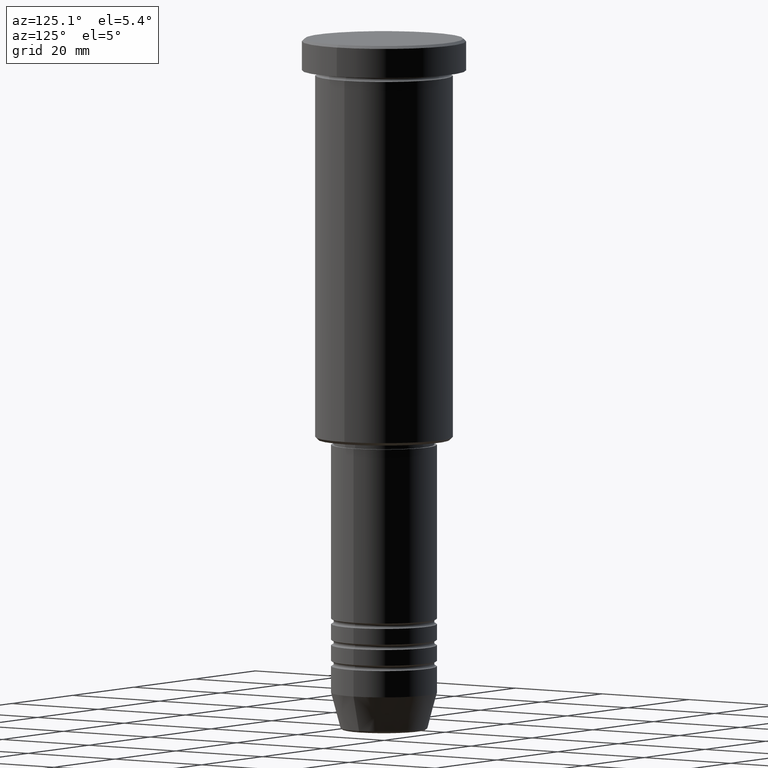
[diagram: clean part render]
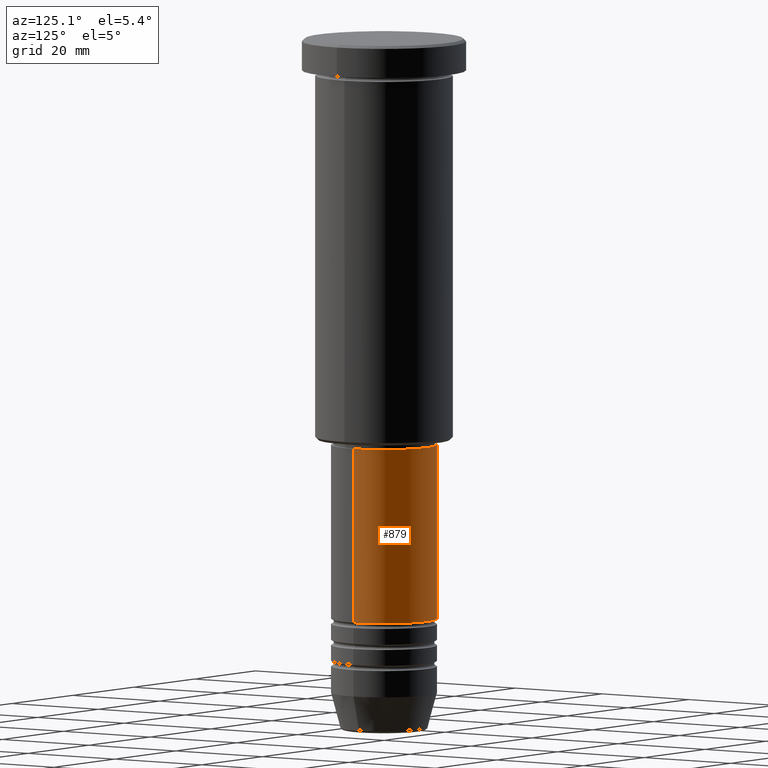
[diagram: same view with one face highlighted and labeled with its STEP entity id]
A machine part, auxiliary view. The second image highlights one B-rep face of the part: STEP entity #879.
In plain terms, the highlighted cylindrical surface (partial cylindrical patch) has radius 10 mm, axis along (-0, -0, 1).
Its self-contained STEP definition (entity closure, byte-faithful):
#50 = CARTESIAN_POINT ( 'NONE',  ( -10.00000000000000178, 1.224646799147353454E-15, -109.9999999999998863 ) ) ;
#95 = AXIS2_PLACEMENT_3D ( 'NONE', #957, #678, #1040 ) ;
#180 = CARTESIAN_POINT ( 'NONE',  ( 0.000000000000000000, 0.000000000000000000, -76.99999999999998579 ) ) ;
#183 = CARTESIAN_POINT ( 'NONE',  ( 10.00000000000000000, 0.000000000000000000, 0.000000000000000000 ) ) ;
#232 = VECTOR ( 'NONE', #912, 1000.000000000000000 ) ;
#240 = ORIENTED_EDGE ( 'NONE', *, *, #1041, .F. ) ;
#249 = ORIENTED_EDGE ( 'NONE', *, *, #1048, .T. ) ;
#250 = DIRECTION ( 'NONE',  ( -0.000000000000000000, -0.000000000000000000, 1.000000000000000000 ) ) ;
#271 = EDGE_LOOP ( 'NONE', ( #886, #249, #240, #432 ) ) ;
#272 = VERTEX_POINT ( 'NONE', #494 ) ;
#328 = CARTESIAN_POINT ( 'NONE',  ( 0.000000000000000000, 0.000000000000000000, 0.000000000000000000 ) ) ;
#380 = LINE ( 'NONE', #1096, #1160 ) ;
#394 = AXIS2_PLACEMENT_3D ( 'NONE', #180, #906, #1037 ) ;
#432 = ORIENTED_EDGE ( 'NONE', *, *, #486, .F. ) ;
#486 = EDGE_CURVE ( 'NONE', #798, #272, #1001, .T. ) ;
#494 = CARTESIAN_POINT ( 'NONE',  ( 9.999999999999998224, 0.000000000000000000, -76.99999999999998579 ) ) ;
#568 = FACE_OUTER_BOUND ( 'NONE', #271, .T. ) ;
#678 = DIRECTION ( 'NONE',  ( -0.000000000000000000, -0.000000000000000000, 1.000000000000000000 ) ) ;
#738 = CYLINDRICAL_SURFACE ( 'NONE', #1178, 10.00000000000000000 ) ;
#798 = VERTEX_POINT ( 'NONE', #1072 ) ;
#825 = CIRCLE ( 'NONE', #394, 9.999999999999998224 ) ;
#869 = CARTESIAN_POINT ( 'NONE',  ( -9.999999999999998224, 1.224646799147353256E-15, -76.99999999999998579 ) ) ;
#879 = ADVANCED_FACE ( 'NONE', ( #568 ), #738, .T. ) ;
#880 = CIRCLE ( 'NONE', #95, 10.00000000000000178 ) ;
#882 = VERTEX_POINT ( 'NONE', #50 ) ;
#886 = ORIENTED_EDGE ( 'NONE', *, *, #1133, .T. ) ;
#906 = DIRECTION ( 'NONE',  ( -0.000000000000000000, -0.000000000000000000, 1.000000000000000000 ) ) ;
#912 = DIRECTION ( 'NONE',  ( -0.000000000000000000, -0.000000000000000000, 1.000000000000000000 ) ) ;
#957 = CARTESIAN_POINT ( 'NONE',  ( 0.000000000000000000, 0.000000000000000000, -109.9999999999998863 ) ) ;
#976 = DIRECTION ( 'NONE',  ( 1.000000000000000000, 0.000000000000000000, 0.000000000000000000 ) ) ;
#1001 = LINE ( 'NONE', #183, #232 ) ;
#1037 = DIRECTION ( 'NONE',  ( 1.000000000000000000, 0.000000000000000000, 0.000000000000000000 ) ) ;
#1040 = DIRECTION ( 'NONE',  ( 1.000000000000000000, 0.000000000000000000, 0.000000000000000000 ) ) ;
#1041 = EDGE_CURVE ( 'NONE', #272, #1097, #825, .T. ) ;
#1048 = EDGE_CURVE ( 'NONE', #882, #1097, #380, .T. ) ;
#1072 = CARTESIAN_POINT ( 'NONE',  ( 10.00000000000000178, 0.000000000000000000, -109.9999999999998863 ) ) ;
#1096 = CARTESIAN_POINT ( 'NONE',  ( -10.00000000000000000, 1.224646799147353256E-15, 0.000000000000000000 ) ) ;
#1097 = VERTEX_POINT ( 'NONE', #869 ) ;
#1099 = DIRECTION ( 'NONE',  ( -0.000000000000000000, -0.000000000000000000, 1.000000000000000000 ) ) ;
#1133 = EDGE_CURVE ( 'NONE', #798, #882, #880, .T. ) ;
#1160 = VECTOR ( 'NONE', #1099, 1000.000000000000000 ) ;
#1178 = AXIS2_PLACEMENT_3D ( 'NONE', #328, #250, #976 ) ;